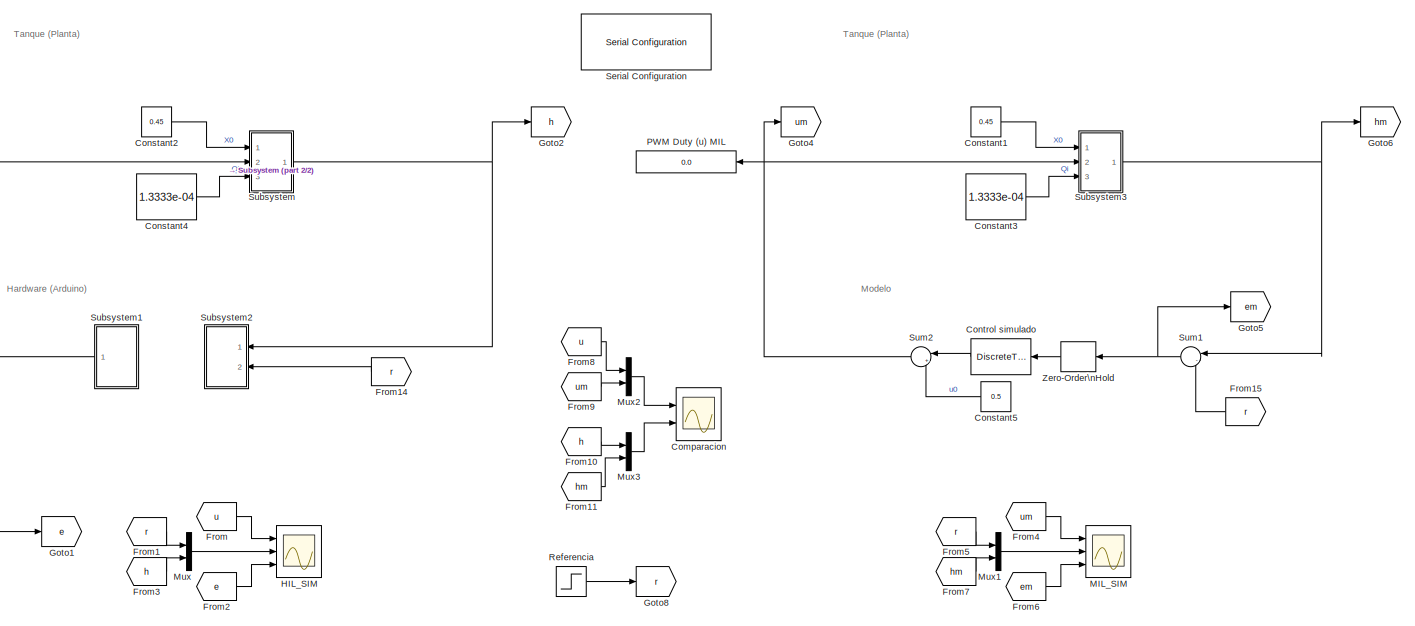
[diagram: root canvas - part 1/2, most of the canvas]
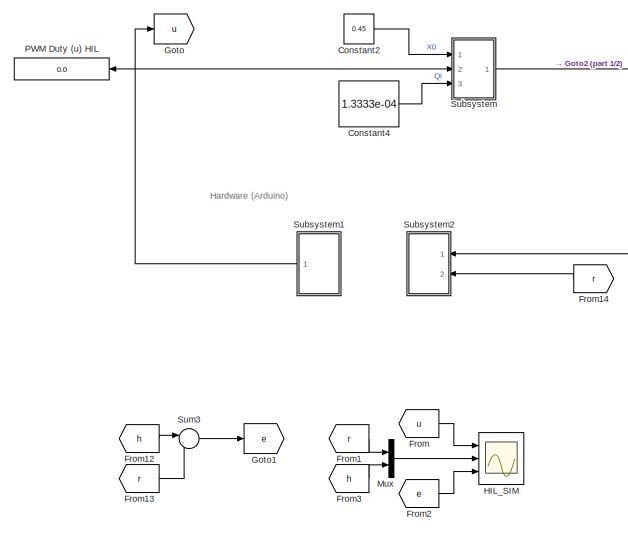
[diagram: root canvas - part 2/2, left side, full height]
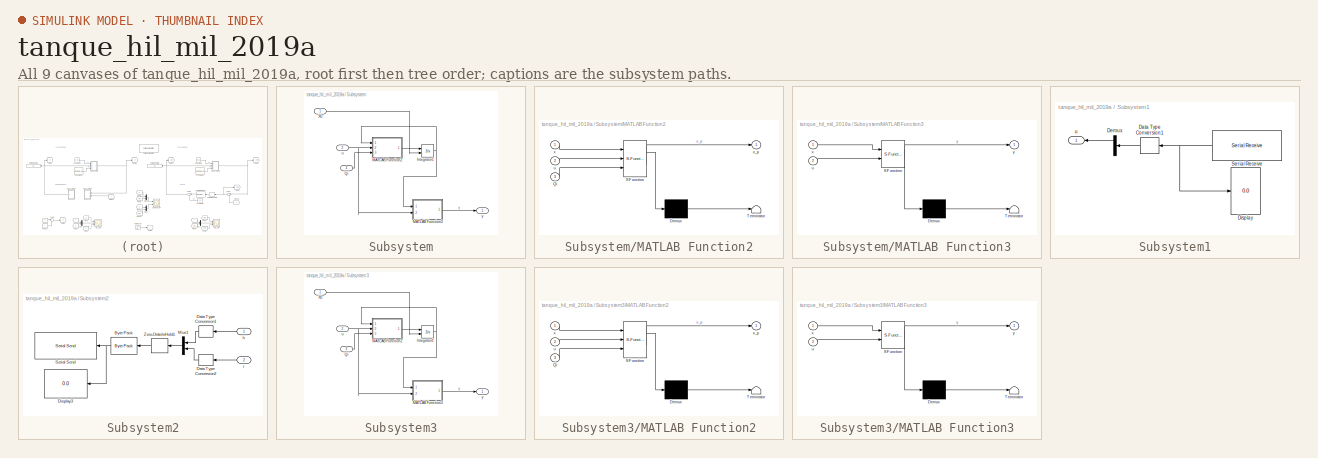
[diagram: thumbnail index - all 9 canvases of the model, root first then tree order]
MODEL tanque_hil_mil_2019a
KIND model
BLOCK [Scope] Comparacion
  Floating = off
  NumInputPorts = 2
  Ports = [2]
  SID = 122
  ScopeSpecificationString = Simulink.scopes.TimeScopeBlockCfg('CurrentConfiguration', extmgr.ConfigurationSet(extmgr.Configuration('Core','General UI',true,'FigureColor',[1 1 1]),extmgr.Configuration('Core','Source UI',true),extmgr.Configuration('Sources','WiredSimulink',true,'DataLoggingVariableName','ScopeData1'),extmgr.Configuration('Visuals','Time Domain',true,'SerializedDisplays',{struct('MinYLimReal','0.42595','MaxYLim...<+2657ch>
BLOCK [Constant] Constant1
  SID = 69
  Value = 0.45
BLOCK [Constant] Constant2
  SID = 7
  Value = 0.45
BLOCK [Constant] Constant3
  SID = 70
  Value = 1.3333e-04
BLOCK [Constant] Constant4
  SID = 37
  Value = 1.3333e-04
BLOCK [Constant] Constant5
  SID = 114
  Value = 0.5
BLOCK [DiscreteTransferFcn] Control simulado
  Denominator = [1]
  InputPortMap = u0
  Ports = [1, 1]
  SID = 112
  SampleTime = 1
  StateName = C_for
  a0EqualsOne = on
BLOCK [From] From
  GotoTag = u
  SID = 59
BLOCK [From] From1
  GotoTag = r
  SID = 62
BLOCK [From] From10
  GotoTag = h
  SID = 126
BLOCK [From] From11
  GotoTag = hm
  SID = 127
BLOCK [From] From12
  GotoTag = h
  SID = 142
BLOCK [From] From13
  GotoTag = r
  SID = 143
BLOCK [From] From14
  GotoTag = r
  SID = 145
BLOCK [From] From15
  GotoTag = r
  SID = 146
BLOCK [From] From2
  GotoTag = e
  SID = 63
BLOCK [From] From3
  GotoTag = h
  SID = 66
BLOCK [From] From4
  GotoTag = um
  SID = 71
BLOCK [From] From5
  GotoTag = r
  SID = 72
BLOCK [From] From6
  GotoTag = em
  SID = 73
BLOCK [From] From7
  GotoTag = hm
  SID = 74
BLOCK [From] From8
  GotoTag = u
  SID = 124
BLOCK [From] From9
  GotoTag = um
  SID = 125
BLOCK [Goto] Goto
  GotoTag = u
  SID = 56
BLOCK [Goto] Goto1
  GotoTag = e
  SID = 60
BLOCK [Goto] Goto2
  GotoTag = h
  SID = 61
BLOCK [Goto] Goto4
  GotoTag = um
  SID = 75
BLOCK [Goto] Goto5
  GotoTag = em
  SID = 76
BLOCK [Goto] Goto6
  GotoTag = hm
  SID = 77
BLOCK [Goto] Goto8
  GotoTag = r
  SID = 144
BLOCK [Scope] HIL_SIM
  Floating = off
  NumInputPorts = 3
  Ports = [3]
  SID = 20
  ScopeSpecificationString = Simulink.scopes.TimeScopeBlockCfg('CurrentConfiguration', extmgr.ConfigurationSet(extmgr.Configuration('Core','General UI',true,'FigureColor',[1 1 1]),extmgr.Configuration('Core','Source UI',true),extmgr.Configuration('Sources','WiredSimulink',true,'DataLoggingVariableName','ScopeData1'),extmgr.Configuration('Visuals','Time Domain',true,'SerializedDisplays',{struct('MinYLimReal','0.42595','MaxYLim...<+3340ch>
BLOCK [Scope] MIL_SIM
  Floating = off
  NumInputPorts = 3
  Ports = [3]
  SID = 82
  ScopeSpecificationString = Simulink.scopes.TimeScopeBlockCfg('CurrentConfiguration', extmgr.ConfigurationSet(extmgr.Configuration('Core','General UI',true,'FigureColor',[1 1 1]),extmgr.Configuration('Core','Source UI',true),extmgr.Configuration('Sources','WiredSimulink',true,'DataLoggingVariableName','ScopeData2'),extmgr.Configuration('Visuals','Time Domain',true,'SerializedDisplays',{struct('MinYLimReal','0.43167','MaxYLim...<+3337ch>
BLOCK [Mux] Mux
  DisplayOption = bar
  Inputs = 2
  Ports = [2, 1]
  SID = 64
BLOCK [Mux] Mux1
  DisplayOption = bar
  Inputs = 2
  Ports = [2, 1]
  SID = 79
BLOCK [Mux] Mux2
  DisplayOption = bar
  Inputs = 2
  Ports = [2, 1]
  SID = 123
BLOCK [Mux] Mux3
  DisplayOption = bar
  Inputs = 2
  Ports = [2, 1]
  SID = 128
BLOCK [Display] PWM Duty (u) HIL
  Decimation = 1
  Format = decimal (Stored Integer)
  Ports = [1]
  SID = 33
BLOCK [Display] PWM Duty (u) MIL
  Decimation = 1
  Format = decimal (Stored Integer)
  Ports = [1]
  SID = 80
BLOCK [Step] Referencia
  After = 0.4
  Before = 0.45
  SID = 38
  SampleTime = 0
  Time = 10
BLOCK [Reference] Serial Configuration  REF=instrumentlib/Serial Configuration
  BaudRate = 115200
  ByteOrder = LittleEndian
  ComPort = /dev/ttyUSB0
  ComPortMenu = /dev/ttyUSB0
  DataBits = 8
  FlowControl = none
  ObjConstructor = serial('/dev/ttyUSB0');
  Parity = none
  Ports = []
  Priority = -200000
  SID = 13
  SourceBlock = instrumentlib/Serial Configuration
  SourceProductBaseCode = IC
  SourceType = system.SerialConfiguration
  StopBits = 1
  Timeout = 10
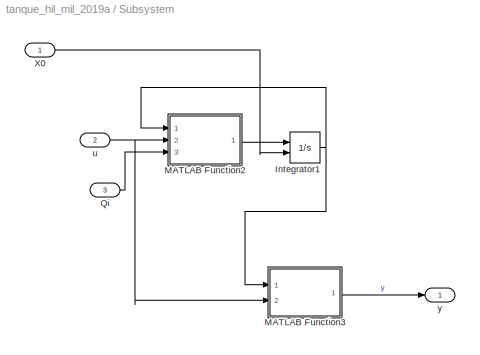
BLOCK [SubSystem] Subsystem
  Ports = [3, 1]
  RequestExecContextInheritance = off
  SID = 39
BLOCK [Integrator] Subsystem/Integrator1
  InitialConditionSource = external
  Ports = [2, 1]
  SID = 8
BLOCK [SubSystem] Subsystem/MATLAB Function2
  ErrorFcn = Stateflow.Translate.translate
  PermitHierarchicalResolution = ExplicitOnly
  Ports = [3, 1]
  RequestExecContextInheritance = off
  SFBlockType = MATLAB Function
  SID = 9
  TreatAsAtomicUnit = on
BLOCK [Demux] Subsystem/MATLAB Function2/ Demux 
  Outputs = 1
  Ports = [1, 1]
  SID = 9::25
BLOCK [S-Function] Subsystem/MATLAB Function2/ SFunction 
  EnableBusSupport = on
  FunctionName = sf_sfun
  PortCounts = [3 2]
  Ports = [3, 2]
  SFcnIsStateOwnerBlock = off
  SFunctionDeploymentMode = off
  SID = 9::24
  Tag = Stateflow S-Function tanque_hil_mil_2019a 1
BLOCK [Terminator] Subsystem/MATLAB Function2/ Terminator 
  SID = 9::26
BLOCK [Inport] Subsystem/MATLAB Function2/Qi
  Port = 3
  SID = 9::23
BLOCK [Inport] Subsystem/MATLAB Function2/u
  Port = 2
  SID = 9::1
BLOCK [Inport] Subsystem/MATLAB Function2/x
  SID = 9::22
BLOCK [Outport] Subsystem/MATLAB Function2/x_p
  SID = 9::5
BLOCK [SubSystem] Subsystem/MATLAB Function3
  ErrorFcn = Stateflow.Translate.translate
  PermitHierarchicalResolution = ExplicitOnly
  Ports = [2, 1]
  RequestExecContextInheritance = off
  SFBlockType = MATLAB Function
  SID = 10
  TreatAsAtomicUnit = on
BLOCK [Demux] Subsystem/MATLAB Function3/ Demux 
  Outputs = 1
  Ports = [1, 1]
  SID = 10::24
BLOCK [S-Function] Subsystem/MATLAB Function3/ SFunction 
  EnableBusSupport = on
  FunctionName = sf_sfun
  PortCounts = [2 2]
  Ports = [2, 2]
  SFcnIsStateOwnerBlock = off
  SFunctionDeploymentMode = off
  SID = 10::23
  Tag = Stateflow S-Function tanque_hil_mil_2019a 4
BLOCK [Terminator] Subsystem/MATLAB Function3/ Terminator 
  SID = 10::25
BLOCK [Inport] Subsystem/MATLAB Function3/u
  Port = 2
  SID = 10::1
BLOCK [Inport] Subsystem/MATLAB Function3/x
  SID = 10::22
BLOCK [Outport] Subsystem/MATLAB Function3/y
  SID = 10::5
BLOCK [Inport] Subsystem/Qi
  Port = 3
  SID = 42
BLOCK [Inport] Subsystem/X0
  SID = 40
BLOCK [Inport] Subsystem/u
  Port = 2
  SID = 41
BLOCK [Outport] Subsystem/y
  SID = 43
BLOCK [SubSystem] Subsystem1
  Ports = [0, 1]
  RequestExecContextInheritance = off
  SID = 52
BLOCK [DataTypeConversion] Subsystem1/Data Type Conversion1
  OutDataTypeStr = double
  RndMeth = Floor
  SID = 138
  SaturateOnIntegerOverflow = off
BLOCK [Demux] Subsystem1/Demux
  Outputs = 3
  Ports = [1, 3]
  SID = 140
BLOCK [Display] Subsystem1/Display
  Decimation = 1
  Format = decimal (Stored Integer)
  Ports = [1]
  SID = 19
BLOCK [Reference] Subsystem1/Serial Receive  REF=instrumentlib/Serial Receive
  ActionDataUnavailable = Output custom value
  ComPort = /dev/ttyUSB0
  ComPortMenu = /dev/ttyUSB0
  CustomValue = -1
  DataSize = [3 1]
  DataType = single
  EnableBlockingMode = on
  Header = abcd
  ObjConstructor = serial('/dev/ttyUSB0');
  Ports = [0, 1]
  SID = 14
  SampleTime = 1
  SourceBlock = instrumentlib/Serial Receive
  SourceProductBaseCode = IC
  SourceType = system.SerialReceive
BLOCK [Outport] Subsystem1/u
  SID = 53
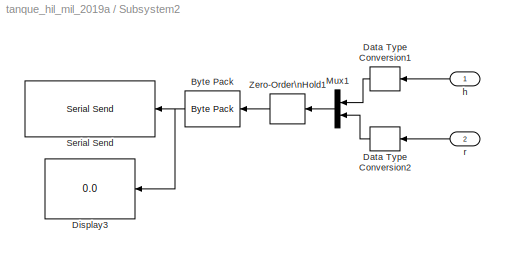
BLOCK [SubSystem] Subsystem2
  Ports = [2]
  RequestExecContextInheritance = off
  SID = 54
BLOCK [Reference] Subsystem2/Byte Pack  REF=svdutilitieslib/Byte Pack
  MultiThreadCoSim = auto
  Ports = [1, 1]
  SID = 134
  SourceBlock = svdutilitieslib/Byte Pack
  SourceProductBaseCode = ANDROID,ARDUINO,ML_ARDUINO,ECCORTEXA,ECCORTEXR,SC_BEAGLEBONE_BLUE,EC_FREEDOM_BOARD,EC_FRDM_K64F,INTEL_BLOCKSET,MICROBIT,NUCLEO,NVIDIA,PX4AUTOPILOTS,RASPPIIO,STMICRODIS,TIC2000,XILINX_BLOCKSET
  SourceType = Byte pack
  blockPlatform = arduinoert
  byteAlign = 4
  datatypes = {'single'}
  maskPackedDataType = uint32
BLOCK [DataTypeConversion] Subsystem2/Data Type Conversion1
  OutDataTypeStr = single
  RndMeth = Floor
  SID = 131
  SaturateOnIntegerOverflow = off
BLOCK [DataTypeConversion] Subsystem2/Data Type Conversion2
  OutDataTypeStr = single
  RndMeth = Floor
  SID = 132
  SaturateOnIntegerOverflow = off
BLOCK [Display] Subsystem2/Display3
  Decimation = 1
  Format = hex (Stored Integer)
  Ports = [1]
  SID = 139
BLOCK [Mux] Subsystem2/Mux1
  DisplayOption = bar
  Inputs = 2
  Ports = [2, 1]
  SID = 136
BLOCK [Reference] Subsystem2/Serial Send  REF=instrumentlib/Serial Send
  ComPort = /dev/ttyUSB0
  ComPortMenu = /dev/ttyUSB0
  EnableBlockingMode = on
  ObjConstructor = serial('/dev/ttyUSB0');
  Ports = [1]
  SID = 15
  SourceBlock = instrumentlib/Serial Send
  SourceProductBaseCode = IC
  SourceType = system.SerialSend
  Terminator = <none>
BLOCK [ZeroOrderHold] Subsystem2/Zero-Order\nHold1
  SID = 135
BLOCK [Inport] Subsystem2/h
  SID = 55
BLOCK [Inport] Subsystem2/r
  Port = 2
  SID = 137
BLOCK [SubSystem] Subsystem3
  Ports = [3, 1]
  RequestExecContextInheritance = off
  SID = 83
BLOCK [Integrator] Subsystem3/Integrator1
  InitialConditionSource = external
  Ports = [2, 1]
  SID = 87
BLOCK [SubSystem] Subsystem3/MATLAB Function2
  ErrorFcn = Stateflow.Translate.translate
  PermitHierarchicalResolution = ExplicitOnly
  Ports = [3, 1]
  RequestExecContextInheritance = off
  SFBlockType = MATLAB Function
  SID = 88
  TreatAsAtomicUnit = on
BLOCK [Demux] Subsystem3/MATLAB Function2/ Demux 
  Outputs = 1
  Ports = [1, 1]
  SID = 88::25
BLOCK [S-Function] Subsystem3/MATLAB Function2/ SFunction 
  EnableBusSupport = on
  FunctionName = sf_sfun
  PortCounts = [3 2]
  Ports = [3, 2]
  SFcnIsStateOwnerBlock = off
  SFunctionDeploymentMode = off
  SID = 88::24
  Tag = Stateflow S-Function tanque_hil_mil_2019a 2
BLOCK [Terminator] Subsystem3/MATLAB Function2/ Terminator 
  SID = 88::26
BLOCK [Inport] Subsystem3/MATLAB Function2/Qi
  Port = 3
  SID = 88::23
BLOCK [Inport] Subsystem3/MATLAB Function2/u
  Port = 2
  SID = 88::1
BLOCK [Inport] Subsystem3/MATLAB Function2/x
  SID = 88::22
BLOCK [Outport] Subsystem3/MATLAB Function2/x_p
  SID = 88::5
BLOCK [SubSystem] Subsystem3/MATLAB Function3
  ErrorFcn = Stateflow.Translate.translate
  PermitHierarchicalResolution = ExplicitOnly
  Ports = [2, 1]
  RequestExecContextInheritance = off
  SFBlockType = MATLAB Function
  SID = 89
  TreatAsAtomicUnit = on
BLOCK [Demux] Subsystem3/MATLAB Function3/ Demux 
  Outputs = 1
  Ports = [1, 1]
  SID = 89::24
BLOCK [S-Function] Subsystem3/MATLAB Function3/ SFunction 
  EnableBusSupport = on
  FunctionName = sf_sfun
  PortCounts = [2 2]
  Ports = [2, 2]
  SFcnIsStateOwnerBlock = off
  SFunctionDeploymentMode = off
  SID = 89::23
  Tag = Stateflow S-Function tanque_hil_mil_2019a 3
BLOCK [Terminator] Subsystem3/MATLAB Function3/ Terminator 
  SID = 89::25
BLOCK [Inport] Subsystem3/MATLAB Function3/u
  Port = 2
  SID = 89::1
BLOCK [Inport] Subsystem3/MATLAB Function3/x
  SID = 89::22
BLOCK [Outport] Subsystem3/MATLAB Function3/y
  SID = 89::5
BLOCK [Inport] Subsystem3/Qi
  Port = 3
  SID = 86
BLOCK [Inport] Subsystem3/X0
  SID = 84
BLOCK [Inport] Subsystem3/u
  Port = 2
  SID = 85
BLOCK [Outport] Subsystem3/y
  SID = 90
BLOCK [Sum] Sum1
  Inputs = |-+
  Ports = [2, 1]
  SID = 108
BLOCK [Sum] Sum2
  Inputs = |++
  Ports = [2, 1]
  SID = 113
BLOCK [Sum] Sum3
  Inputs = |-+
  Ports = [2, 1]
  SID = 141
BLOCK [ZeroOrderHold] Zero-Order\nHold
  SID = 121
ANNOTATION (root): Hardware (Arduino)
ANNOTATION (root): Modelo
ANNOTATION (root): Tanque (Planta)
LINE Constant1:1 -> Subsystem3:1
LINE Constant2:1 -> Subsystem:1
LINE Constant3:1 -> Subsystem3:3
LINE Constant4:1 -> Subsystem:3
LINE Constant5:1 -> Sum2:2
LINE Control simulado:1 -> Sum2:1
LINE From10:1 -> Mux3:1
LINE From11:1 -> Mux3:2
LINE From12:1 -> Sum3:1
LINE From13:1 -> Sum3:2
LINE From14:1 -> Subsystem2:2
LINE From15:1 -> Sum1:2
LINE From1:1 -> Mux:1
LINE From2:1 -> HIL_SIM:3
LINE From3:1 -> Mux:2
LINE From4:1 -> MIL_SIM:1
LINE From5:1 -> Mux1:1
LINE From6:1 -> MIL_SIM:3
LINE From7:1 -> Mux1:2
LINE From8:1 -> Mux2:1
LINE From9:1 -> Mux2:2
LINE From:1 -> HIL_SIM:1
LINE Mux1:1 -> MIL_SIM:2
LINE Mux2:1 -> Comparacion:1
LINE Mux3:1 -> Comparacion:2
LINE Mux:1 -> HIL_SIM:2
LINE Referencia:1 -> Goto8:1
NET Subsystem/Integrator1:1 -> Subsystem/MATLAB Function2:1, Subsystem/MATLAB Function3:1
LINE Subsystem/MATLAB Function2/ Demux :1 -> Subsystem/MATLAB Function2/ Terminator :1
LINE Subsystem/MATLAB Function2/ SFunction :1 -> Subsystem/MATLAB Function2/ Demux :1
LINE Subsystem/MATLAB Function2/ SFunction :2 -> Subsystem/MATLAB Function2/x_p:1
LINE Subsystem/MATLAB Function2/Qi:1 -> Subsystem/MATLAB Function2/ SFunction :3
LINE Subsystem/MATLAB Function2/u:1 -> Subsystem/MATLAB Function2/ SFunction :2
LINE Subsystem/MATLAB Function2/x:1 -> Subsystem/MATLAB Function2/ SFunction :1
LINE Subsystem/MATLAB Function2:1 -> Subsystem/Integrator1:1
LINE Subsystem/MATLAB Function3/ Demux :1 -> Subsystem/MATLAB Function3/ Terminator :1
LINE Subsystem/MATLAB Function3/ SFunction :1 -> Subsystem/MATLAB Function3/ Demux :1
LINE Subsystem/MATLAB Function3/ SFunction :2 -> Subsystem/MATLAB Function3/y:1
LINE Subsystem/MATLAB Function3/u:1 -> Subsystem/MATLAB Function3/ SFunction :2
LINE Subsystem/MATLAB Function3/x:1 -> Subsystem/MATLAB Function3/ SFunction :1
LINE Subsystem/MATLAB Function3:1 -> Subsystem/y:1
LINE Subsystem/Qi:1 -> Subsystem/MATLAB Function2:3
LINE Subsystem/X0:1 -> Subsystem/Integrator1:2
NET Subsystem/u:1 -> Subsystem/MATLAB Function2:2, Subsystem/MATLAB Function3:2
LINE Subsystem1/Data Type Conversion1:1 -> Subsystem1/Demux:1
LINE Subsystem1/Demux:1 -> Subsystem1/u:1
NET Subsystem1/Serial Receive:1 -> Subsystem1/Data Type Conversion1:1, Subsystem1/Display:1
NET Subsystem1:1 -> Goto:1, PWM Duty (u) HIL:1, Subsystem:2
NET Subsystem2/Byte Pack:1 -> Subsystem2/Display3:1, Subsystem2/Serial Send:1
LINE Subsystem2/Data Type Conversion1:1 -> Subsystem2/Mux1:1
LINE Subsystem2/Data Type Conversion2:1 -> Subsystem2/Mux1:2
LINE Subsystem2/Mux1:1 -> Subsystem2/Zero-Order\nHold1:1
LINE Subsystem2/Zero-Order\nHold1:1 -> Subsystem2/Byte Pack:1
LINE Subsystem2/h:1 -> Subsystem2/Data Type Conversion1:1
LINE Subsystem2/r:1 -> Subsystem2/Data Type Conversion2:1
NET Subsystem3/Integrator1:1 -> Subsystem3/MATLAB Function2:1, Subsystem3/MATLAB Function3:1
LINE Subsystem3/MATLAB Function2/ Demux :1 -> Subsystem3/MATLAB Function2/ Terminator :1
LINE Subsystem3/MATLAB Function2/ SFunction :1 -> Subsystem3/MATLAB Function2/ Demux :1
LINE Subsystem3/MATLAB Function2/ SFunction :2 -> Subsystem3/MATLAB Function2/x_p:1
LINE Subsystem3/MATLAB Function2/Qi:1 -> Subsystem3/MATLAB Function2/ SFunction :3
LINE Subsystem3/MATLAB Function2/u:1 -> Subsystem3/MATLAB Function2/ SFunction :2
LINE Subsystem3/MATLAB Function2/x:1 -> Subsystem3/MATLAB Function2/ SFunction :1
LINE Subsystem3/MATLAB Function2:1 -> Subsystem3/Integrator1:1
LINE Subsystem3/MATLAB Function3/ Demux :1 -> Subsystem3/MATLAB Function3/ Terminator :1
LINE Subsystem3/MATLAB Function3/ SFunction :1 -> Subsystem3/MATLAB Function3/ Demux :1
LINE Subsystem3/MATLAB Function3/ SFunction :2 -> Subsystem3/MATLAB Function3/y:1
LINE Subsystem3/MATLAB Function3/u:1 -> Subsystem3/MATLAB Function3/ SFunction :2
LINE Subsystem3/MATLAB Function3/x:1 -> Subsystem3/MATLAB Function3/ SFunction :1
LINE Subsystem3/MATLAB Function3:1 -> Subsystem3/y:1
LINE Subsystem3/Qi:1 -> Subsystem3/MATLAB Function2:3
LINE Subsystem3/X0:1 -> Subsystem3/Integrator1:2
NET Subsystem3/u:1 -> Subsystem3/MATLAB Function2:2, Subsystem3/MATLAB Function3:2
NET Subsystem3:1 -> Goto6:1, Sum1:1
NET Subsystem:1 -> Goto2:1, Subsystem2:1
NET Sum1:1 -> Goto5:1, Zero-Order\nHold:1
NET Sum2:1 -> Goto4:1, PWM Duty (u) MIL:1, Subsystem3:2
LINE Sum3:1 -> Goto1:1
LINE Zero-Order\nHold:1 -> Control simulado:1
note: NET lines group one-source signal fan-out (src -> all destinations, sorted); 1:1 wires keep LINE
CHART Subsystem/MATLAB Function2 states=1 transitions=1
  STATE_LABEL 'eML_blk_kernel()'
CHART Subsystem3/MATLAB Function2 states=1 transitions=1
  STATE_LABEL 'eML_blk_kernel()'
CHART Subsystem3/MATLAB Function3 states=1 transitions=1
  STATE_LABEL 'eML_blk_kernel()'
CHART Subsystem/MATLAB Function3 states=1 transitions=1
  STATE_LABEL 'eML_blk_kernel()'
